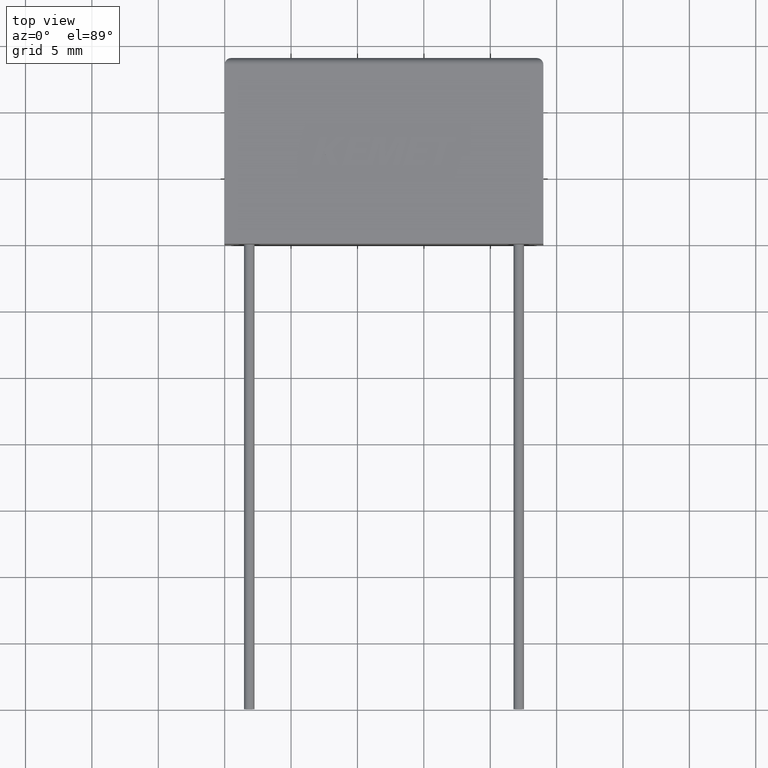
[diagram: clean part render]
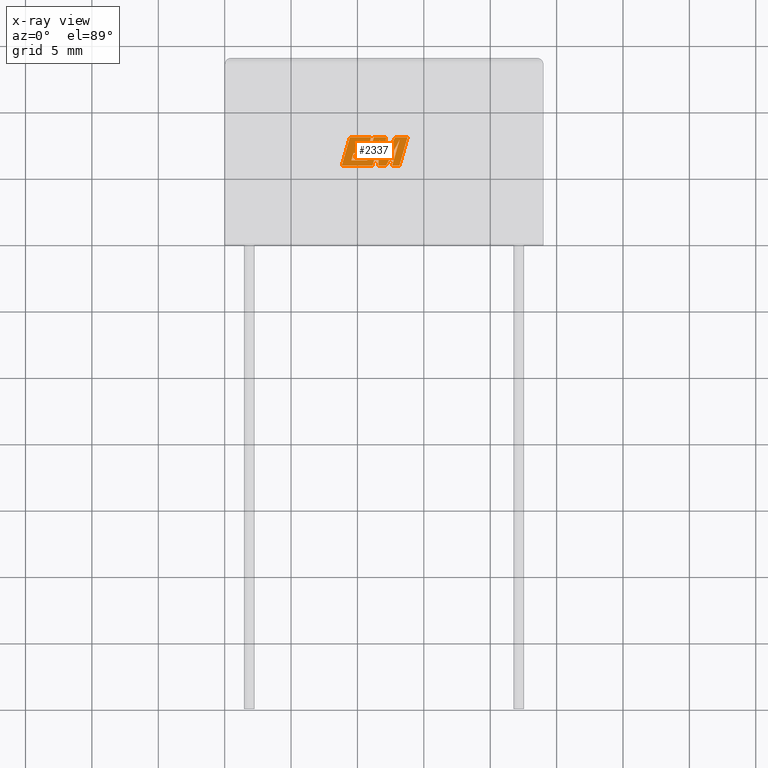
[diagram: x-ray — body ghosted, one internal face saturated and labeled with its STEP entity id]
A machine part, top view, then the same camera in x-ray: the body is ghosted and one INTERNAL B-rep face — a face not visible from any outside direction — is saturated and labeled: STEP entity #2337.
In plain terms, the highlighted planar face has unit normal (0, 0, -1).
Its self-contained STEP definition (entity closure, byte-faithful):
#4 = CARTESIAN_POINT ( 'NONE',  ( 9.810966866978692000, 7.211409104020453300, 7.599999999999999600 ) ) ;
#16 = CARTESIAN_POINT ( 'NONE',  ( 13.15800970377181800, 5.870199999999999600, 7.599999999999999600 ) ) ;
#35 = CARTESIAN_POINT ( 'NONE',  ( 9.434679732383630200, 8.020761567497706000, 7.599999999999999600 ) ) ;
#52 = DIRECTION ( 'NONE',  ( -0.2765379750249970500, -0.9610029908221274800, 0.0000000000000000000 ) ) ;
#55 = VERTEX_POINT ( 'NONE', #504 ) ;
#75 = VERTEX_POINT ( 'NONE', #891 ) ;
#76 = FACE_OUTER_BOUND ( 'NONE', #1703, .T. ) ;
#92 = LINE ( 'NONE', #2197, #690 ) ;
#106 = VECTOR ( 'NONE', #2248, 1000.000000000000000 ) ;
#115 = VERTEX_POINT ( 'NONE', #1290 ) ;
#121 = VERTEX_POINT ( 'NONE', #525 ) ;
#131 = VECTOR ( 'NONE', #1766, 1000.000000000000000 ) ;
#135 = EDGE_CURVE ( 'NONE', #142, #476, #1123, .T. ) ;
#138 = VECTOR ( 'NONE', #1302, 1000.000000000000000 ) ;
#140 = VERTEX_POINT ( 'NONE', #1095 ) ;
#142 = VERTEX_POINT ( 'NONE', #1446 ) ;
#154 = LINE ( 'NONE', #1106, #282 ) ;
#164 = VECTOR ( 'NONE', #1288, 1000.000000000000000 ) ;
#188 = CARTESIAN_POINT ( 'NONE',  ( 10.73401303815242800, 7.211409104020453300, 7.599999999999999600 ) ) ;
#201 = VERTEX_POINT ( 'NONE', #1143 ) ;
#210 = EDGE_CURVE ( 'NONE', #1940, #2059, #1815, .T. ) ;
#212 = ORIENTED_EDGE ( 'NONE', *, *, #1475, .F. ) ;
#214 = ORIENTED_EDGE ( 'NONE', *, *, #1865, .F. ) ;
#223 = CARTESIAN_POINT ( 'NONE',  ( 10.62045664959350900, 6.813844041955564800, 7.599999999999999600 ) ) ;
#227 = VECTOR ( 'NONE', #1786, 1000.000000000000000 ) ;
#245 = DIRECTION ( 'NONE',  ( -1.000000000000000000, 0.0000000000000000000, 0.0000000000000000000 ) ) ;
#273 = LINE ( 'NONE', #1459, #763 ) ;
#282 = VECTOR ( 'NONE', #1645, 1000.000000000000200 ) ;
#306 = CARTESIAN_POINT ( 'NONE',  ( 11.13265049557882900, 5.870199999999998800, 7.599999999999999600 ) ) ;
#309 = DIRECTION ( 'NONE',  ( 1.000000000000000000, 0.0000000000000000000, 0.0000000000000000000 ) ) ;
#310 = AXIS2_PLACEMENT_3D ( 'NONE', #1930, #1221, #245 ) ;
#311 = DIRECTION ( 'NONE',  ( 0.2740217765954059400, 0.9617234872620598100, 0.0000000000000000000 ) ) ;
#314 = DIRECTION ( 'NONE',  ( -0.4443210308329522100, -0.8958676361826799500, 0.0000000000000000000 ) ) ;
#336 = VECTOR ( 'NONE', #52, 1000.000000000000100 ) ;
#373 = VECTOR ( 'NONE', #974, 1000.000000000000000 ) ;
#383 = DIRECTION ( 'NONE',  ( -1.000000000000000000, 0.0000000000000000000, 0.0000000000000000000 ) ) ;
#391 = DIRECTION ( 'NONE',  ( 0.2763139702539114100, 0.9610674221107072800, 0.0000000000000000000 ) ) ;
#402 = CARTESIAN_POINT ( 'NONE',  ( 11.23794812053024300, 8.020761567497706000, 7.599999999999999600 ) ) ;
#405 = VECTOR ( 'NONE', #2003, 1000.000000000000100 ) ;
#430 = CARTESIAN_POINT ( 'NONE',  ( 12.14838708525922700, 5.870199999999999600, 7.599999999999999600 ) ) ;
#451 = VERTEX_POINT ( 'NONE', #625 ) ;
#453 = CARTESIAN_POINT ( 'NONE',  ( 12.07109175963770500, 6.484372752351331900, 7.599999999999999600 ) ) ;
#465 = LINE ( 'NONE', #692, #1616 ) ;
#469 = CARTESIAN_POINT ( 'NONE',  ( 8.815834685362881700, 5.870199999999998800, 7.599999999999999600 ) ) ;
#472 = EDGE_CURVE ( 'NONE', #1762, #976, #813, .T. ) ;
#476 = VERTEX_POINT ( 'NONE', #35 ) ;
#495 = VERTEX_POINT ( 'NONE', #1954 ) ;
#504 = CARTESIAN_POINT ( 'NONE',  ( 10.73401303815242800, 7.211409104020453300, 7.599999999999999600 ) ) ;
#506 = DIRECTION ( 'NONE',  ( 1.000000000000000000, 1.410797975395186900E-015, 0.0000000000000000000 ) ) ;
#521 = ORIENTED_EDGE ( 'NONE', *, *, #855, .F. ) ;
#525 = CARTESIAN_POINT ( 'NONE',  ( 11.68238478015423700, 7.784788436449807700, 7.599999999999999600 ) ) ;
#539 = LINE ( 'NONE', #2213, #164 ) ;
#561 = VECTOR ( 'NONE', #2416, 1000.000000000000100 ) ;
#609 = DIRECTION ( 'NONE',  ( -0.2762517575166415500, -0.9610853065513833600, 0.0000000000000000000 ) ) ;
#625 = CARTESIAN_POINT ( 'NONE',  ( 11.57506660389045000, 5.870199999999999600, 7.599999999999999600 ) ) ;
#650 = ORIENTED_EDGE ( 'NONE', *, *, #210, .F. ) ;
#651 = EDGE_CURVE ( 'NONE', #826, #201, #1622, .T. ) ;
#671 = ORIENTED_EDGE ( 'NONE', *, *, #1507, .F. ) ;
#675 = LINE ( 'NONE', #1349, #1098 ) ;
#690 = VECTOR ( 'NONE', #309, 1000.000000000000000 ) ;
#692 = CARTESIAN_POINT ( 'NONE',  ( 12.61151876646890100, 5.870199999999998800, 7.599999999999999600 ) ) ;
#710 = VECTOR ( 'NONE', #729, 1000.000000000000200 ) ;
#729 = DIRECTION ( 'NONE',  ( 0.2759782365590722800, 0.9611638845408958500, 0.0000000000000000000 ) ) ;
#742 = ORIENTED_EDGE ( 'NONE', *, *, #1405, .F. ) ;
#763 = VECTOR ( 'NONE', #311, 1000.000000000000100 ) ;
#765 = ORIENTED_EDGE ( 'NONE', *, *, #1897, .F. ) ;
#786 = DIRECTION ( 'NONE',  ( 0.2793947940878305800, 0.9601763114327591700, 0.0000000000000000000 ) ) ;
#792 = VECTOR ( 'NONE', #609, 1000.000000000000100 ) ;
#813 = LINE ( 'NONE', #453, #227 ) ;
#826 = VERTEX_POINT ( 'NONE', #2280 ) ;
#838 = VECTOR ( 'NONE', #1799, 1000.000000000000100 ) ;
#855 = EDGE_CURVE ( 'NONE', #1096, #1946, #1237, .T. ) ;
#889 = CARTESIAN_POINT ( 'NONE',  ( 9.697541258551613200, 6.813844041955564800, 7.599999999999999600 ) ) ;
#890 = CARTESIAN_POINT ( 'NONE',  ( 13.15800970377181800, 5.870199999999999600, 7.599999999999999600 ) ) ;
#891 = CARTESIAN_POINT ( 'NONE',  ( 11.13265049557882900, 5.870199999999998800, 7.599999999999999600 ) ) ;
#942 = VECTOR ( 'NONE', #1454, 1000.000000000000000 ) ;
#951 = VECTOR ( 'NONE', #786, 1000.000000000000000 ) ;
#969 = EDGE_CURVE ( 'NONE', #55, #2300, #1654, .T. ) ;
#970 = ORIENTED_EDGE ( 'NONE', *, *, #135, .F. ) ;
#974 = DIRECTION ( 'NONE',  ( -1.000000000000000000, 0.0000000000000000000, 0.0000000000000000000 ) ) ;
#976 = VERTEX_POINT ( 'NONE', #1172 ) ;
#980 = VECTOR ( 'NONE', #391, 1000.000000000000100 ) ;
#983 = VECTOR ( 'NONE', #2208, 1000.000000000000000 ) ;
#994 = ORIENTED_EDGE ( 'NONE', *, *, #1494, .F. ) ;
#1052 = CARTESIAN_POINT ( 'NONE',  ( 10.90717901084580400, 7.611413215545429300, 7.599999999999999600 ) ) ;
#1083 = CARTESIAN_POINT ( 'NONE',  ( 12.14838708525922700, 5.870199999999999600, 7.599999999999999600 ) ) ;
#1095 = CARTESIAN_POINT ( 'NONE',  ( 9.545247794913541000, 6.279345642751769300, 7.599999999999999600 ) ) ;
#1096 = VERTEX_POINT ( 'NONE', #1964 ) ;
#1098 = VECTOR ( 'NONE', #314, 1000.000000000000100 ) ;
#1106 = CARTESIAN_POINT ( 'NONE',  ( 10.62045664959350900, 6.813844041955564800, 7.599999999999999600 ) ) ;
#1123 = LINE ( 'NONE', #2044, #138 ) ;
#1133 = LINE ( 'NONE', #306, #710 ) ;
#1143 = CARTESIAN_POINT ( 'NONE',  ( 12.61151876646890100, 5.870199999999998800, 7.599999999999999600 ) ) ;
#1167 = EDGE_CURVE ( 'NONE', #976, #495, #1839, .T. ) ;
#1172 = CARTESIAN_POINT ( 'NONE',  ( 12.15379620799092400, 8.020761567497706000, 7.599999999999999600 ) ) ;
#1206 = VECTOR ( 'NONE', #383, 1000.000000000000000 ) ;
#1207 = CARTESIAN_POINT ( 'NONE',  ( 13.77631201151804200, 8.020761567497706000, 7.599999999999999600 ) ) ;
#1221 = DIRECTION ( 'NONE',  ( 0.0000000000000000000, 0.0000000000000000000, -1.000000000000000000 ) ) ;
#1237 = LINE ( 'NONE', #1207, #373 ) ;
#1241 = CARTESIAN_POINT ( 'NONE',  ( 9.434679732383630200, 8.020761567497706000, 7.599999999999999600 ) ) ;
#1288 = DIRECTION ( 'NONE',  ( 1.000000000000000000, 0.0000000000000000000, 0.0000000000000000000 ) ) ;
#1290 = CARTESIAN_POINT ( 'NONE',  ( 10.73740024356318100, 6.279345642751769300, 7.599999999999999600 ) ) ;
#1300 = CARTESIAN_POINT ( 'NONE',  ( 12.83309033457769000, 8.020761567497706000, 7.599999999999999600 ) ) ;
#1302 = DIRECTION ( 'NONE',  ( -1.000000000000000000, 0.0000000000000000000, 0.0000000000000000000 ) ) ;
#1349 = CARTESIAN_POINT ( 'NONE',  ( 12.83309033457769000, 8.020761567497706000, 7.599999999999999600 ) ) ;
#1353 = VERTEX_POINT ( 'NONE', #430 ) ;
#1373 = CARTESIAN_POINT ( 'NONE',  ( 9.810966866978692000, 7.211409104020453300, 7.599999999999999600 ) ) ;
#1381 = ORIENTED_EDGE ( 'NONE', *, *, #1632, .F. ) ;
#1385 = ORIENTED_EDGE ( 'NONE', *, *, #2371, .F. ) ;
#1387 = ORIENTED_EDGE ( 'NONE', *, *, #969, .F. ) ;
#1390 = EDGE_CURVE ( 'NONE', #121, #451, #1836, .T. ) ;
#1405 = EDGE_CURVE ( 'NONE', #201, #1847, #465, .T. ) ;
#1421 = LINE ( 'NONE', #2012, #983 ) ;
#1446 = CARTESIAN_POINT ( 'NONE',  ( 11.02344254813588800, 8.020761567497706000, 7.599999999999999600 ) ) ;
#1454 = DIRECTION ( 'NONE',  ( 1.000000000000000000, -2.014110522645507600E-015, 0.0000000000000000000 ) ) ;
#1457 = EDGE_CURVE ( 'NONE', #115, #140, #1421, .T. ) ;
#1459 = CARTESIAN_POINT ( 'NONE',  ( 9.545247794913541000, 6.279345642751769300, 7.599999999999999600 ) ) ;
#1475 = EDGE_CURVE ( 'NONE', #1967, #2218, #92, .T. ) ;
#1494 = EDGE_CURVE ( 'NONE', #2059, #55, #154, .T. ) ;
#1503 = VECTOR ( 'NONE', #1986, 1000.000000000000000 ) ;
#1507 = EDGE_CURVE ( 'NONE', #2218, #142, #2133, .T. ) ;
#1508 = CARTESIAN_POINT ( 'NONE',  ( 9.697541258551613200, 6.813844041955564800, 7.599999999999999600 ) ) ;
#1579 = ORIENTED_EDGE ( 'NONE', *, *, #2295, .F. ) ;
#1584 = EDGE_CURVE ( 'NONE', #1847, #1096, #1923, .T. ) ;
#1601 = ORIENTED_EDGE ( 'NONE', *, *, #1167, .F. ) ;
#1616 = VECTOR ( 'NONE', #506, 1000.000000000000000 ) ;
#1622 = LINE ( 'NONE', #2193, #405 ) ;
#1632 = EDGE_CURVE ( 'NONE', #2300, #1967, #2457, .T. ) ;
#1638 = LINE ( 'NONE', #1811, #942 ) ;
#1645 = DIRECTION ( 'NONE',  ( 0.2746459304916890600, 0.9615454294334481200, 0.0000000000000000000 ) ) ;
#1654 = LINE ( 'NONE', #188, #1206 ) ;
#1703 = EDGE_LOOP ( 'NONE', ( #521, #1943, #742, #1801, #1998, #1725, #2129, #214, #2034, #765, #970, #671, #212, #1381, #1387, #994, #650, #1920, #1861, #1579, #1601, #2439, #1385 ) ) ;
#1721 = EDGE_CURVE ( 'NONE', #1353, #826, #1803, .T. ) ;
#1725 = ORIENTED_EDGE ( 'NONE', *, *, #1773, .F. ) ;
#1746 = VERTEX_POINT ( 'NONE', #469 ) ;
#1762 = VERTEX_POINT ( 'NONE', #1837 ) ;
#1766 = DIRECTION ( 'NONE',  ( -1.000000000000000000, 0.0000000000000000000, 0.0000000000000000000 ) ) ;
#1773 = EDGE_CURVE ( 'NONE', #451, #1353, #539, .T. ) ;
#1786 = DIRECTION ( 'NONE',  ( 0.05375259206908614100, 0.9985542843760946100, 0.0000000000000000000 ) ) ;
#1799 = DIRECTION ( 'NONE',  ( -0.05596501978069497200, -0.9984327301130238000, 0.0000000000000000000 ) ) ;
#1801 = ORIENTED_EDGE ( 'NONE', *, *, #651, .F. ) ;
#1803 = LINE ( 'NONE', #1083, #1503 ) ;
#1811 = CARTESIAN_POINT ( 'NONE',  ( 10.74985704941476600, 5.870199999999999600, 7.599999999999999600 ) ) ;
#1815 = LINE ( 'NONE', #1508, #106 ) ;
#1836 = LINE ( 'NONE', #2401, #838 ) ;
#1837 = CARTESIAN_POINT ( 'NONE',  ( 12.07109175963770500, 6.484372752351331900, 7.599999999999999600 ) ) ;
#1839 = LINE ( 'NONE', #2343, #131 ) ;
#1845 = EDGE_CURVE ( 'NONE', #1746, #75, #1638, .T. ) ;
#1847 = VERTEX_POINT ( 'NONE', #890 ) ;
#1861 = ORIENTED_EDGE ( 'NONE', *, *, #1457, .F. ) ;
#1865 = EDGE_CURVE ( 'NONE', #75, #121, #1133, .T. ) ;
#1897 = EDGE_CURVE ( 'NONE', #476, #1746, #2123, .T. ) ;
#1920 = ORIENTED_EDGE ( 'NONE', *, *, #1939, .F. ) ;
#1923 = LINE ( 'NONE', #16, #980 ) ;
#1930 = CARTESIAN_POINT ( 'NONE',  ( 0.03254324761736357400, 0.4343266908722982500, 7.599999999999999600 ) ) ;
#1939 = EDGE_CURVE ( 'NONE', #140, #1940, #273, .T. ) ;
#1940 = VERTEX_POINT ( 'NONE', #889 ) ;
#1943 = ORIENTED_EDGE ( 'NONE', *, *, #1584, .F. ) ;
#1946 = VERTEX_POINT ( 'NONE', #1300 ) ;
#1954 = CARTESIAN_POINT ( 'NONE',  ( 11.23794812053024300, 8.020761567497706000, 7.599999999999999600 ) ) ;
#1964 = CARTESIAN_POINT ( 'NONE',  ( 13.77631201151804200, 8.020761567497706000, 7.599999999999999600 ) ) ;
#1967 = VERTEX_POINT ( 'NONE', #2128 ) ;
#1986 = DIRECTION ( 'NONE',  ( 0.4668459304955088200, 0.8843386665637675800, 0.0000000000000000000 ) ) ;
#1998 = ORIENTED_EDGE ( 'NONE', *, *, #1721, .F. ) ;
#2003 = DIRECTION ( 'NONE',  ( -0.2760118818968581000, -0.9611542233438683500, 0.0000000000000000000 ) ) ;
#2012 = CARTESIAN_POINT ( 'NONE',  ( 10.73740024356318100, 6.279345642751769300, 7.599999999999999600 ) ) ;
#2034 = ORIENTED_EDGE ( 'NONE', *, *, #1845, .F. ) ;
#2044 = CARTESIAN_POINT ( 'NONE',  ( 11.02344254813588800, 8.020761567497706000, 7.599999999999999600 ) ) ;
#2059 = VERTEX_POINT ( 'NONE', #223 ) ;
#2123 = LINE ( 'NONE', #1241, #336 ) ;
#2128 = CARTESIAN_POINT ( 'NONE',  ( 9.927361184400503200, 7.611413215545429300, 7.599999999999999600 ) ) ;
#2129 = ORIENTED_EDGE ( 'NONE', *, *, #1390, .F. ) ;
#2133 = LINE ( 'NONE', #1052, #561 ) ;
#2178 = LINE ( 'NONE', #402, #792 ) ;
#2193 = CARTESIAN_POINT ( 'NONE',  ( 13.16397327778773800, 7.794008435746613700, 7.599999999999999600 ) ) ;
#2197 = CARTESIAN_POINT ( 'NONE',  ( 9.927361184400503200, 7.611413215545429300, 7.599999999999999600 ) ) ;
#2208 = DIRECTION ( 'NONE',  ( -1.000000000000000000, 0.0000000000000000000, 0.0000000000000000000 ) ) ;
#2213 = CARTESIAN_POINT ( 'NONE',  ( 11.57506660389045000, 5.870199999999999600, 7.599999999999999600 ) ) ;
#2218 = VERTEX_POINT ( 'NONE', #2287 ) ;
#2248 = DIRECTION ( 'NONE',  ( 1.000000000000000000, 0.0000000000000000000, 0.0000000000000000000 ) ) ;
#2280 = CARTESIAN_POINT ( 'NONE',  ( 13.16397327778773800, 7.794008435746613700, 7.599999999999999600 ) ) ;
#2287 = CARTESIAN_POINT ( 'NONE',  ( 10.90717901084580400, 7.611413215545429300, 7.599999999999999600 ) ) ;
#2295 = EDGE_CURVE ( 'NONE', #495, #115, #2178, .T. ) ;
#2300 = VERTEX_POINT ( 'NONE', #4 ) ;
#2337 = ADVANCED_FACE ( 'NONE', ( #76 ), #2345, .T. ) ;
#2343 = CARTESIAN_POINT ( 'NONE',  ( 12.15379620799092400, 8.020761567497706000, 7.599999999999999600 ) ) ;
#2345 = PLANE ( 'NONE',  #310 ) ;
#2371 = EDGE_CURVE ( 'NONE', #1946, #1762, #675, .T. ) ;
#2401 = CARTESIAN_POINT ( 'NONE',  ( 11.68238478015423700, 7.784788436449807700, 7.599999999999999600 ) ) ;
#2416 = DIRECTION ( 'NONE',  ( 0.2732148821746286900, 0.9619530280415482500, 0.0000000000000000000 ) ) ;
#2439 = ORIENTED_EDGE ( 'NONE', *, *, #472, .F. ) ;
#2457 = LINE ( 'NONE', #1373, #951 ) ;